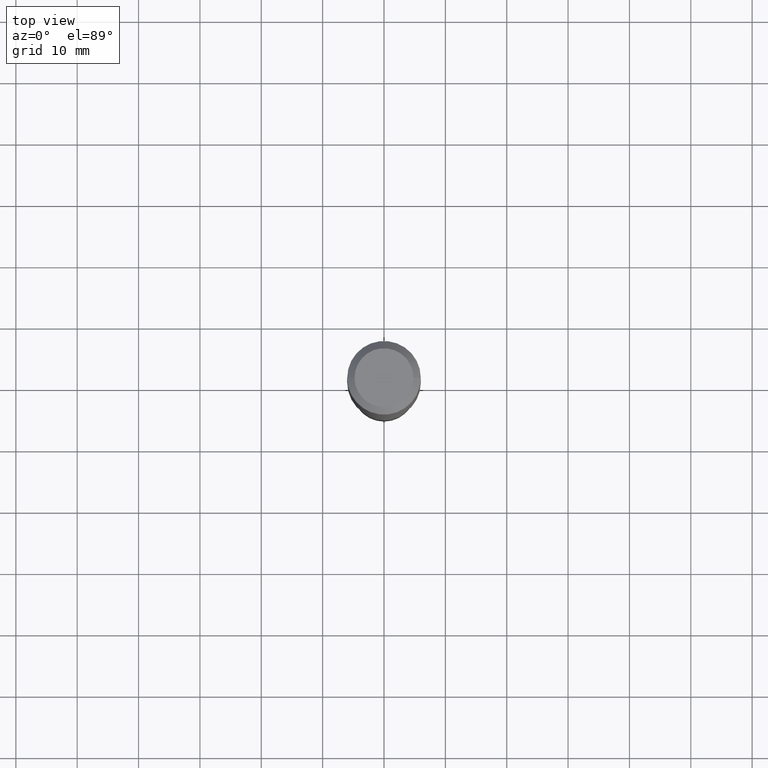
[diagram: clean part render]
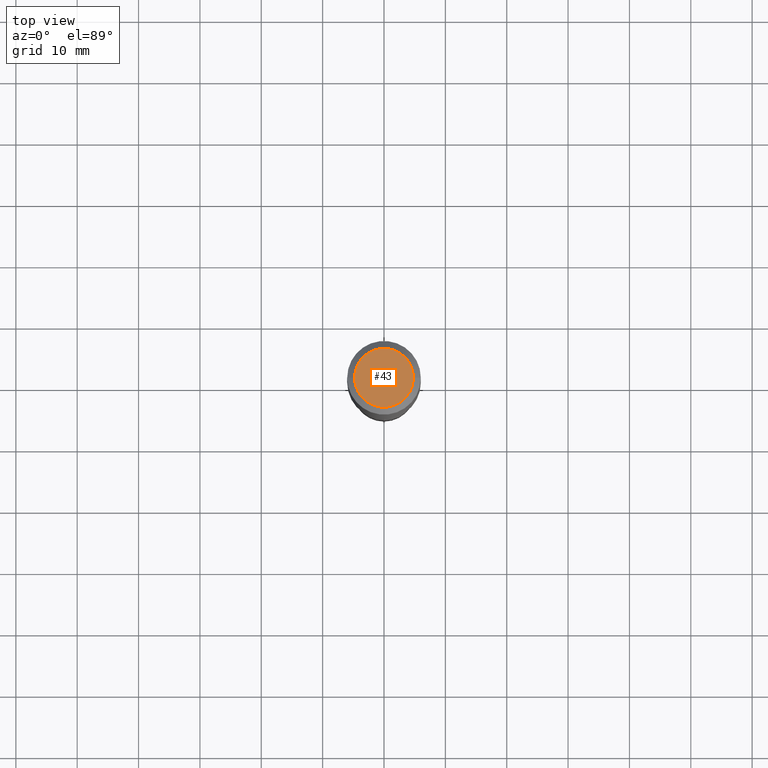
[diagram: same view with one face highlighted and labeled with its STEP entity id]
A machine part, top view. The second image highlights one B-rep face of the part: STEP entity #43.
In plain terms, the highlighted planar face has unit normal (0, -0, -1).
Its self-contained STEP definition (entity closure, byte-faithful):
#21 = DIRECTION ( 'NONE',  ( -2.445468806185136597E-29, 3.491481338843145583E-15, 1.000000000000000000 ) ) ;
#33 = AXIS2_PLACEMENT_3D ( 'NONE', #87, #398, #352 ) ;
#43 = ADVANCED_FACE ( 'NONE', ( #427 ), #389, .F. ) ;
#44 = EDGE_LOOP ( 'NONE', ( #242, #175 ) ) ;
#51 = CARTESIAN_POINT ( 'NONE',  ( 0.1889600000000000168, -1.540873453589747738E-15, 3.855188123725863225E-18 ) ) ;
#81 = DIRECTION ( 'NONE',  ( -2.445468806185136597E-29, 3.491481338843145583E-15, 1.000000000000000000 ) ) ;
#86 = CIRCLE ( 'NONE', #360, 0.1889600000000000168 ) ;
#87 = CARTESIAN_POINT ( 'NONE',  ( -4.713871149261273121E-47, 6.730158695841826722E-33, 1.927594061857931128E-18 ) ) ;
#90 = CARTESIAN_POINT ( 'NONE',  ( -9.427742298522546243E-47, 1.346031739168365344E-32, 3.855188123715862256E-18 ) ) ;
#111 = CIRCLE ( 'NONE', #243, 0.1889600000000000168 ) ;
#129 = EDGE_CURVE ( 'NONE', #212, #485, #86, .T. ) ;
#175 = ORIENTED_EDGE ( 'NONE', *, *, #483, .T. ) ;
#212 = VERTEX_POINT ( 'NONE', #224 ) ;
#224 = CARTESIAN_POINT ( 'NONE',  ( -0.1889600000000000168, 1.401969416799070942E-15, 3.855188123706346622E-18 ) ) ;
#242 = ORIENTED_EDGE ( 'NONE', *, *, #129, .T. ) ;
#243 = AXIS2_PLACEMENT_3D ( 'NONE', #90, #21, #329 ) ;
#247 = DIRECTION ( 'NONE',  ( 1.000000000000000000, -6.982962677686266711E-15, 4.876185090822587894E-29 ) ) ;
#282 = CARTESIAN_POINT ( 'NONE',  ( -9.427742298522546243E-47, 1.346031739168365344E-32, 3.855188123715862256E-18 ) ) ;
#329 = DIRECTION ( 'NONE',  ( 1.000000000000000000, -6.982962677686266711E-15, 4.876185090822587894E-29 ) ) ;
#352 = DIRECTION ( 'NONE',  ( -1.000000000000000000, 6.982962677686265922E-15, -4.876176775795935793E-29 ) ) ;
#360 = AXIS2_PLACEMENT_3D ( 'NONE', #282, #81, #247 ) ;
#389 = PLANE ( 'NONE',  #33 ) ;
#398 = DIRECTION ( 'NONE',  ( 2.438088387897960049E-29, -3.491481338843145188E-15, -1.000000000000000000 ) ) ;
#427 = FACE_OUTER_BOUND ( 'NONE', #44, .T. ) ;
#483 = EDGE_CURVE ( 'NONE', #485, #212, #111, .T. ) ;
#485 = VERTEX_POINT ( 'NONE', #51 ) ;